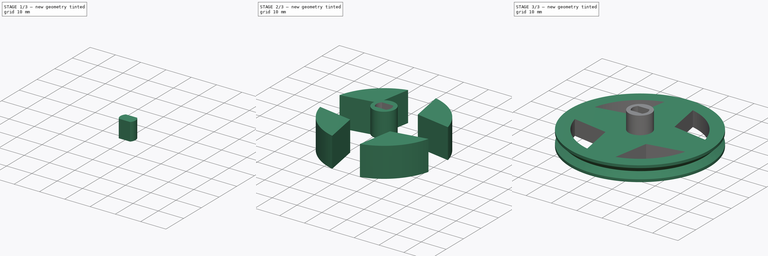
[diagram: build sequence overview — one tinted view per stage of 3, left to right]
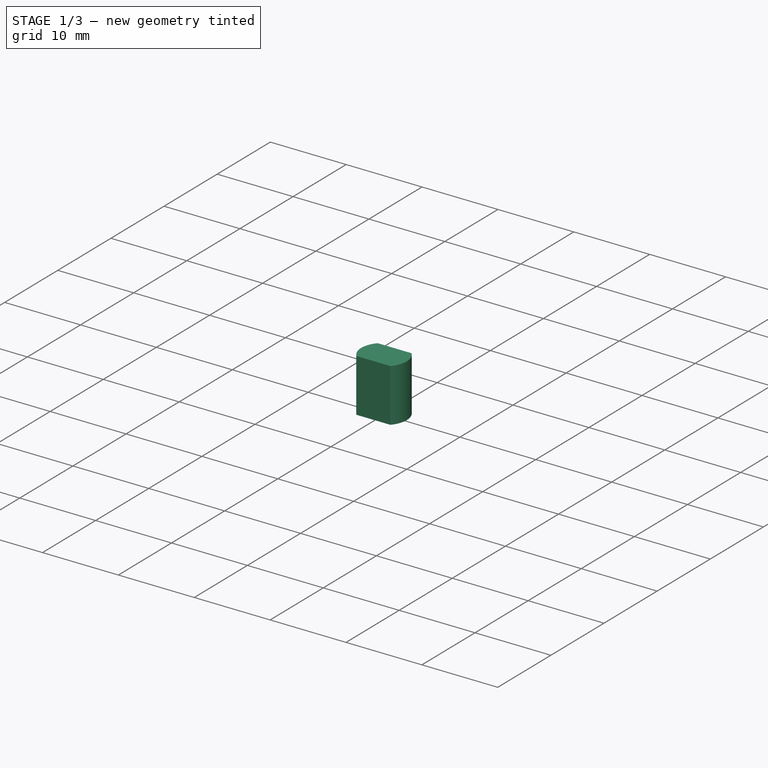
[diagram: stage 1 of 3 — iso view after this stage's code; geometry added in this stage tinted green]
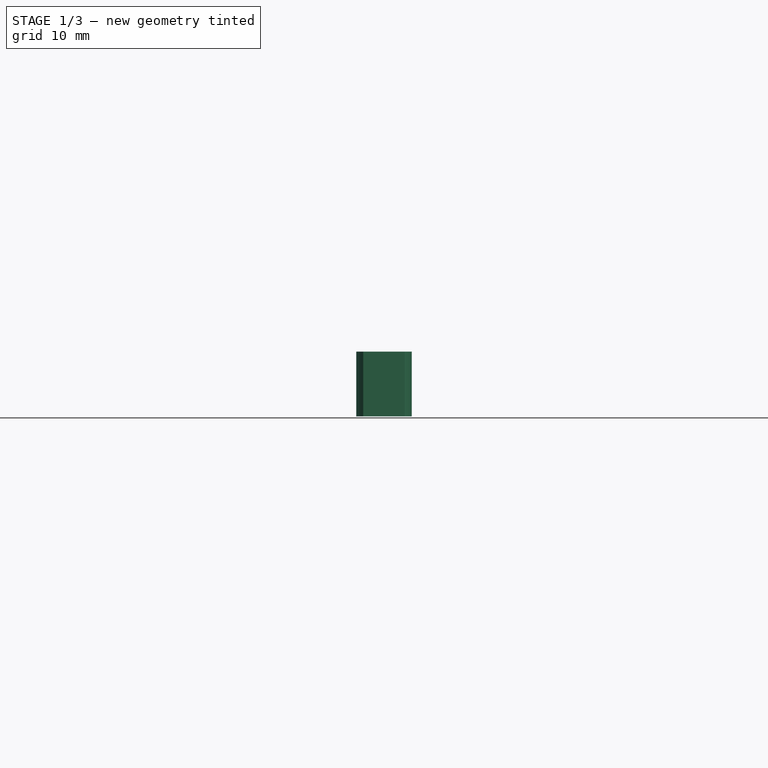
[diagram: stage 1 of 3 — front view after this stage's code; geometry added in this stage tinted green]
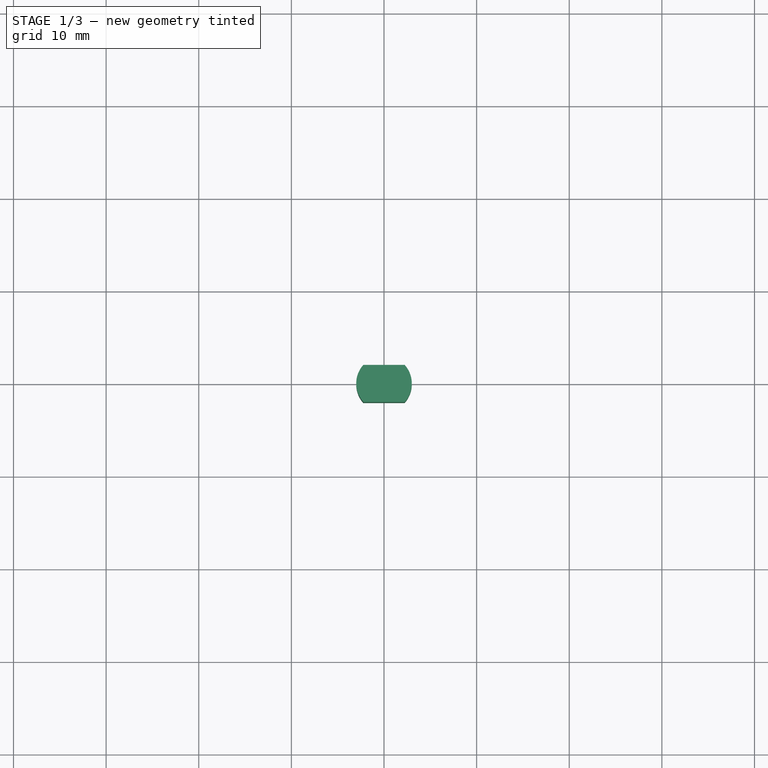
[diagram: stage 1 of 3 — top view after this stage's code; geometry added in this stage tinted green]
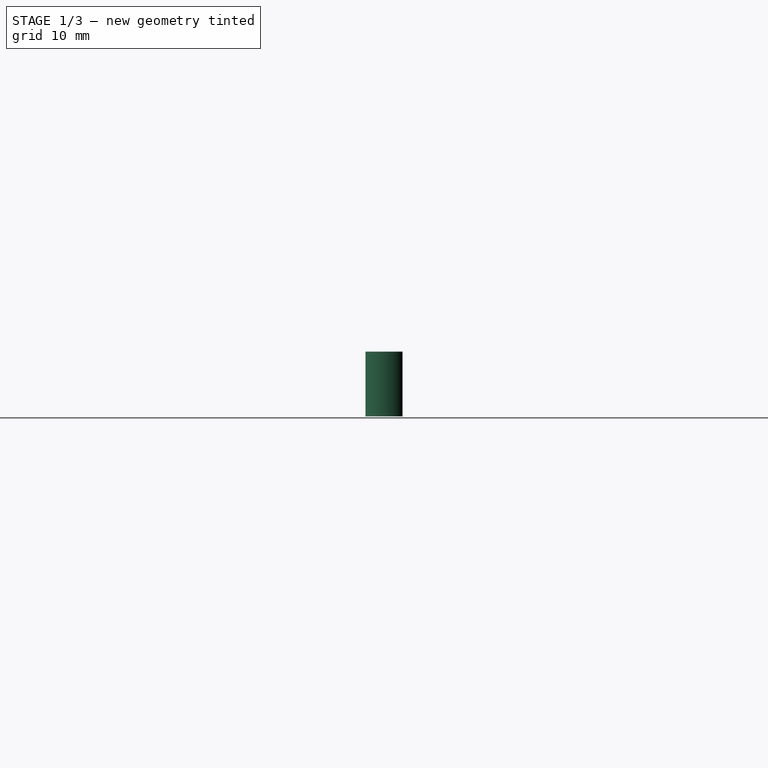
[diagram: stage 1 of 3 — right view after this stage's code; geometry added in this stage tinted green]
FCSTD DOCUMENT  (FreeCAD 0.20R29410 (Git))
Label: wheel 27.5mm r
License: All rights reserved
LicenseURL: http://en.wikipedia.org/wiki/All_rights_reserved
objects: Sketcher::SketchObject×3, Part::Extrusion×2, Part::Cut×2, PartDesign::Revolution×1, PartDesign::Body×1, Part::Cylinder×1
note: 11 computed .brp shape members not serialized (recipe doc carries the construction recipe); baked Part::Feature solids carry a one-line shape summary decoded from their .brp

FEATURE [Part::Cylinder] Cylinder
  Angle = 360
  AttacherType = Attacher::AttachEngine3D
  FirstAngle = 0
  Height = 10
  Radius = 4.5
  SecondAngle = 0
FEATURE [Sketcher::SketchObject] Sketch002
  FullyConstrained = true
  MapMode = 5
  Placement = pos=(0,0,10) rot=(0,0,1;0rad)
  Support = -> [Cylinder]
  sketch-geometry (4):
    g0: ArcOfCircle CenterX=0 CenterY=0 CenterZ=0 NormalX=0 NormalY=0 NormalZ=1 AngleXU=0 Radius=3 StartAngle=5.55346 EndAngle=7.01291
    g1: ArcOfCircle CenterX=0 CenterY=0 CenterZ=0 NormalX=0 NormalY=0 NormalZ=1 AngleXU=0 Radius=3 StartAngle=2.41186 EndAngle=3.87132
    g2: LineSegment StartX=-2.23607 StartY=2 StartZ=0 EndX=2.23607 EndY=2 EndZ=0
    g3: LineSegment StartX=2.23607 StartY=-2 StartZ=0 EndX=-2.23607 EndY=-2 EndZ=0
  constraints (12):
    c: Coincident(g0,g-1)
    c: Coincident(g1,g0)
    c: Equal(g0,g1)
    c: Coincident(g2,g1)
    c: Coincident(g2,g0)
    c: Horizontal(g2)
    c: Coincident(g3,g0)
    c: Coincident(g3,g1)
    c: Horizontal(g3)
    c: DistanceY(g1,g1) = 4
    c: Equal(g2,g3)
    c: Radius(g0) = 3
FEATURE [Part::Extrusion] Extrude001
  Base = -> Sketch002
  Dir = (0,0,1)
  DirMode = 2
  FaceMakerClass = Part::FaceMakerBullseye
  LengthFwd = 7
  LengthRev = 0
  Reversed = true
  Solid = true
  Symmetric = false
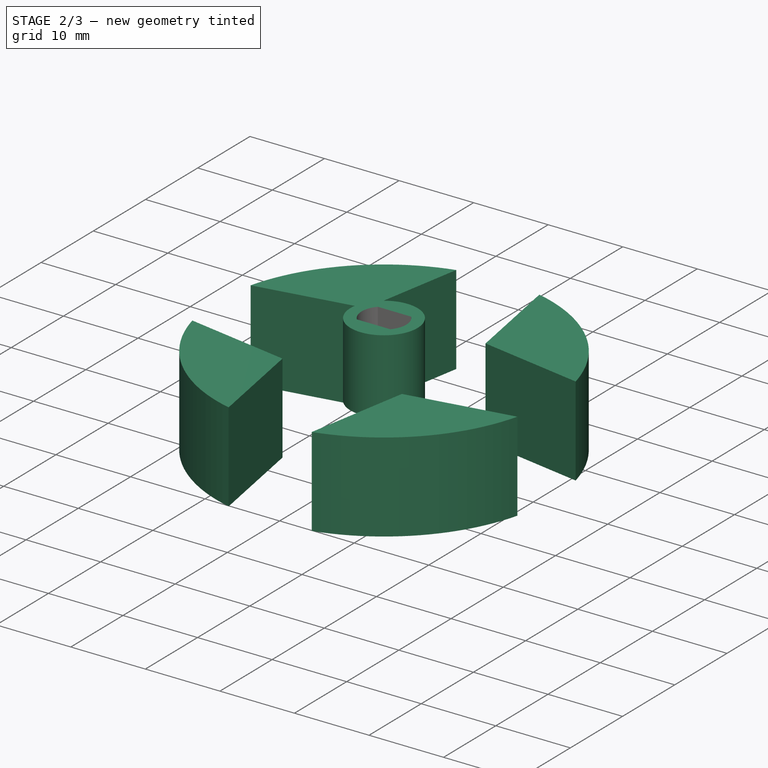
[diagram: stage 2 of 3 — iso view after this stage's code; geometry added in this stage tinted green]
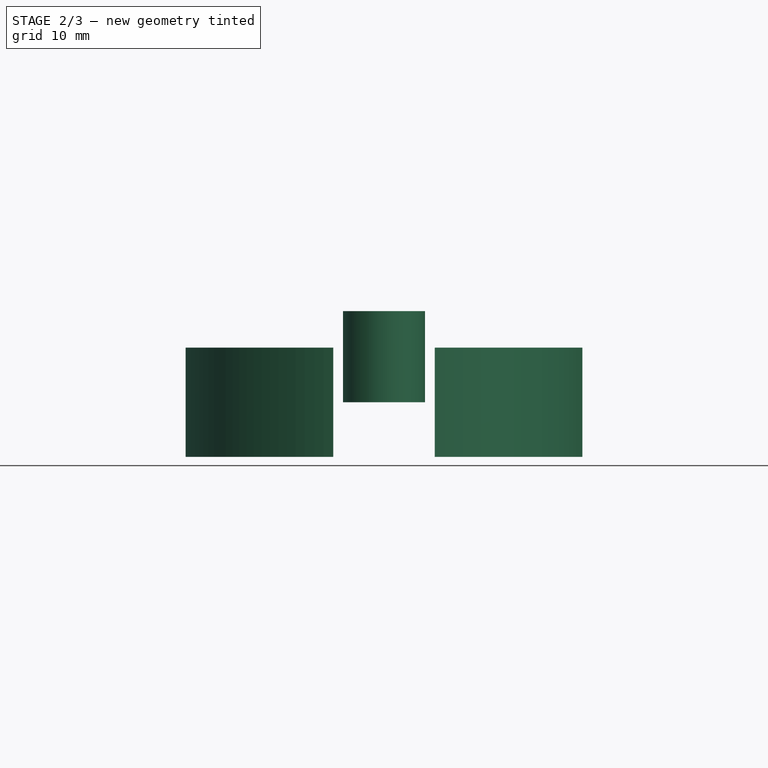
[diagram: stage 2 of 3 — front view after this stage's code; geometry added in this stage tinted green]
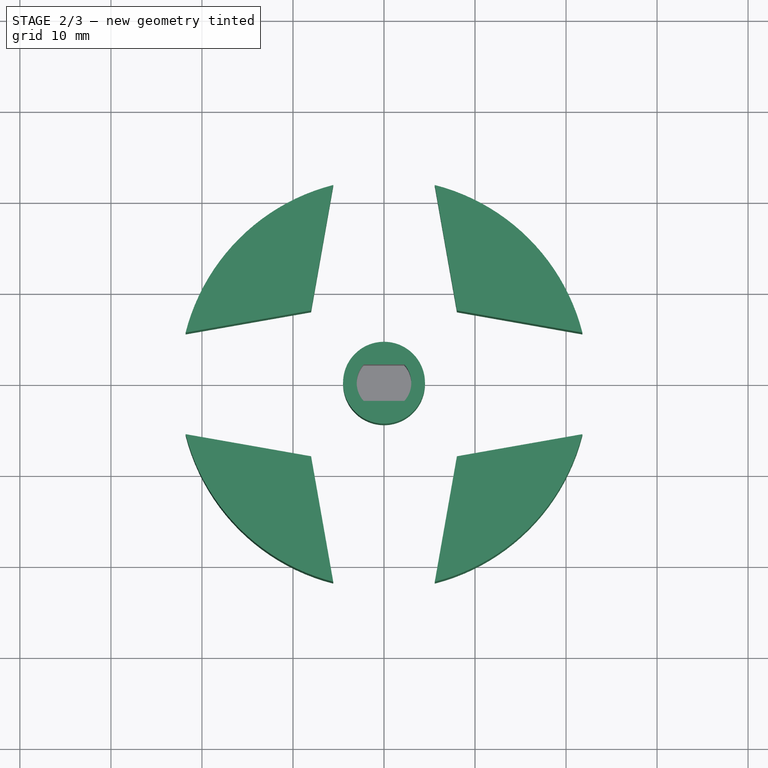
[diagram: stage 2 of 3 — top view after this stage's code; geometry added in this stage tinted green]
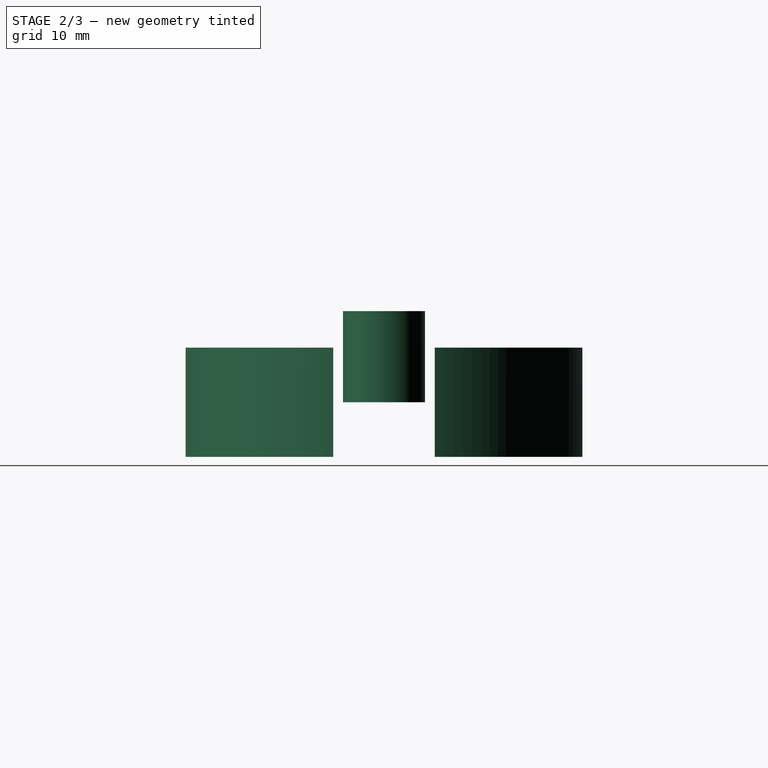
[diagram: stage 2 of 3 — right view after this stage's code; geometry added in this stage tinted green]
FEATURE [PartDesign::Body] Body
  Group = -> [Sketch,Revolution]
  Origin = -> Origin
  Tip = -> Revolution
FEATURE [Sketcher::SketchObject] Sketch001  label="Holes for wheel"
  FullyConstrained = true
  sketch-geometry (12):
    g0: ArcOfCircle CenterX=0 CenterY=0 CenterZ=0 NormalX=0 NormalY=0 NormalZ=1 AngleXU=0 Radius=22.5 StartAngle=1.82132 EndAngle=2.89098
    g1: LineSegment StartX=-21.7971 StartY=5.58 StartZ=0 EndX=-8.00968 EndY=8.01043 EndZ=0
    g2: LineSegment StartX=-5.57796 StartY=21.7976 StartZ=0 EndX=-8.00968 EndY=8.01043 EndZ=0
    g3: ArcOfCircle CenterX=0 CenterY=0 CenterZ=0 NormalX=0 NormalY=0 NormalZ=1 AngleXU=0 Radius=22.5 StartAngle=0.250615 EndAngle=1.32027
    g4: ArcOfCircle CenterX=0 CenterY=0 CenterZ=0 NormalX=0 NormalY=0 NormalZ=1 AngleXU=0 Radius=22.5 StartAngle=4.96291 EndAngle=6.03257
    g5: ArcOfCircle CenterX=0 CenterY=0 CenterZ=0 NormalX=0 NormalY=0 NormalZ=1 AngleXU=0 Radius=22.5 StartAngle=3.39221 EndAngle=4.46187
    g6: LineSegment StartX=-21.7971 StartY=-5.58 StartZ=0 EndX=-8.00968 EndY=-8.01043 EndZ=0
    g7: LineSegment StartX=-8.00968 StartY=-8.01043 StartZ=0 EndX=-5.57796 EndY=-21.7976 EndZ=0
    g8: LineSegment StartX=5.57796 StartY=-21.7976 StartZ=0 EndX=8.00968 EndY=-8.01043 EndZ=0
    g9: LineSegment StartX=8.00968 StartY=-8.01043 StartZ=0 EndX=21.7971 EndY=-5.58 EndZ=0
    g10: LineSegment StartX=21.7971 StartY=5.58 StartZ=0 EndX=8.00968 EndY=8.01043 EndZ=0
    g11: LineSegment StartX=8.00968 StartY=8.01043 StartZ=0 EndX=5.57796 EndY=21.7976 EndZ=0
  constraints (36):
    c: Coincident(g0,g-1)
    c: Radius(g0) = 22.5
    c: Coincident(g1,g0)
    c: Coincident(g2,g0)
    c: Coincident(g2,g1)
    c: Equal(g2,g1)
    c: Distance(g2) = 14
    c: Angle(g2,g1) = 1.91986
    c: DistanceY(g0,g0) = 5.58
    c: Coincident(g3,g0)
    c: Coincident(g4,g0)
    c: Coincident(g5,g0)
    c: Coincident(g6,g5)
    c: Coincident(g7,g6)
    c: Coincident(g7,g5)
    c: Coincident(g8,g4)
    c: Coincident(g9,g4)
    c: Coincident(g10,g3)
    c: Coincident(g11,g10)
    c: Coincident(g11,g3)
    c: Vertical(g1,g6)
    c: Vertical(g0,g5)
    c: Vertical(g0,g5)
    c: Radius(g5) = 22.5
    c: Radius(g4) = 22.5
    c: Radius(g3) = 22.5
    c: Distance(g11) = 14
    c: Distance(g9) = 14
    c: Distance(g7) = 14
    c: Horizontal(g0,g3)
    c: Horizontal(g1,g10)
    c: Horizontal(g0,g3)
    c: Coincident(g9,g8)
    c: Horizontal(g5,g4)
    c: Horizontal(g6,g8)
    c: Horizontal(g5,g4)
FEATURE [Part::Extrusion] Extrude  label="Extrude wheel holes 12mm"
  Base = -> Sketch001
  Dir = (0,0,1)
  DirMode = 2
  FaceMakerClass = Part::FaceMakerBullseye
  LengthFwd = 6
  LengthRev = 6
  Solid = true
  Symmetric = false
FEATURE [Part::Cut] Cut001  label="Cut for support"
  Base = -> Cylinder
  Refine = true
  Tool = -> Extrude001
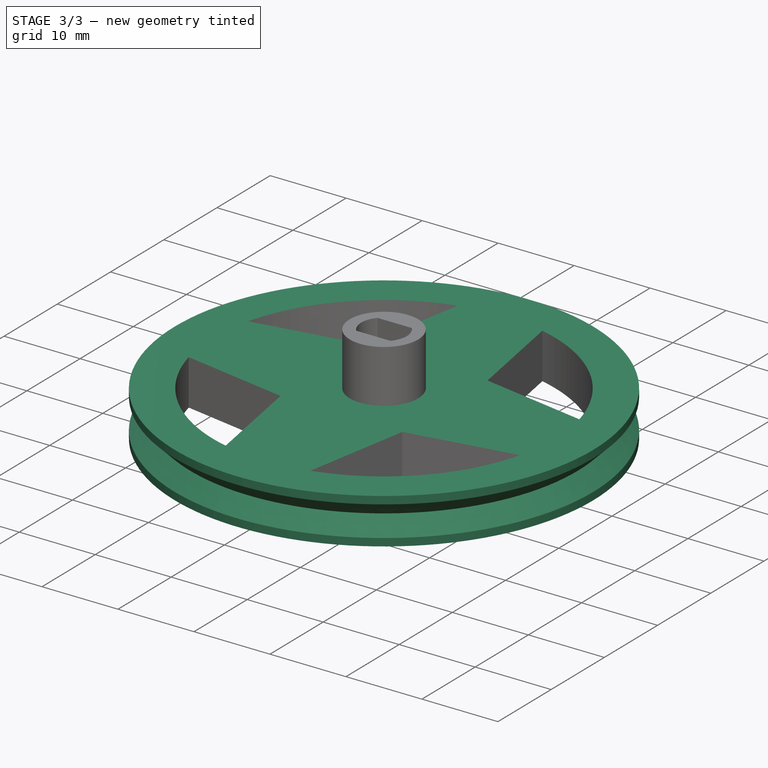
[diagram: stage 3 of 3 — iso view after this stage's code; geometry added in this stage tinted green]
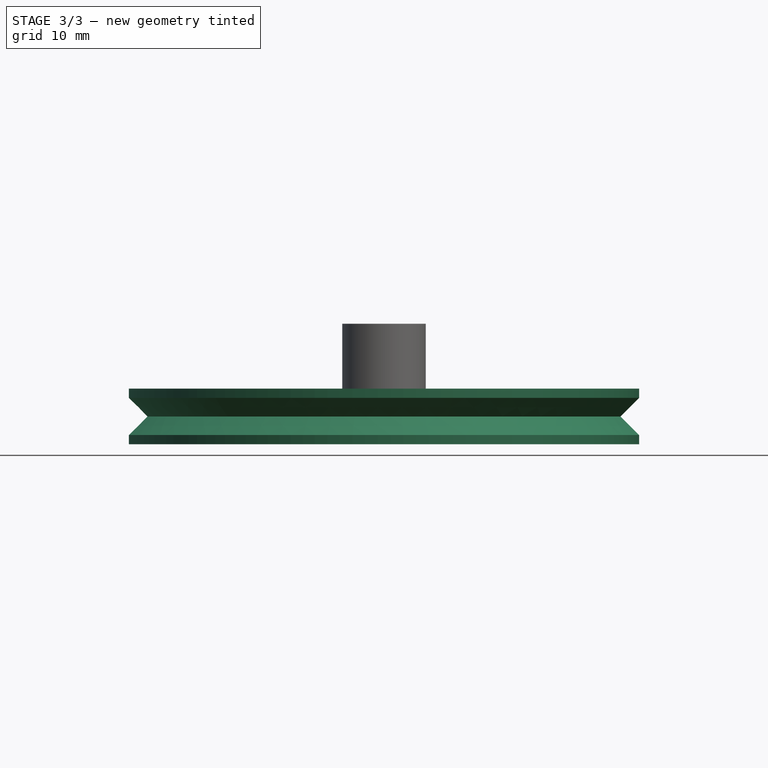
[diagram: stage 3 of 3 — front view after this stage's code; geometry added in this stage tinted green]
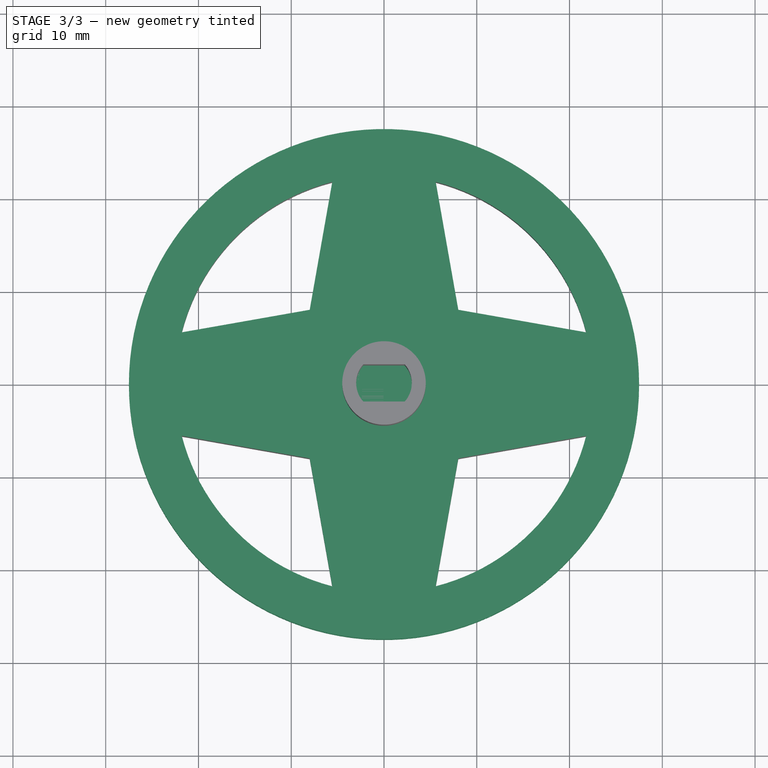
[diagram: stage 3 of 3 — top view after this stage's code; geometry added in this stage tinted green]
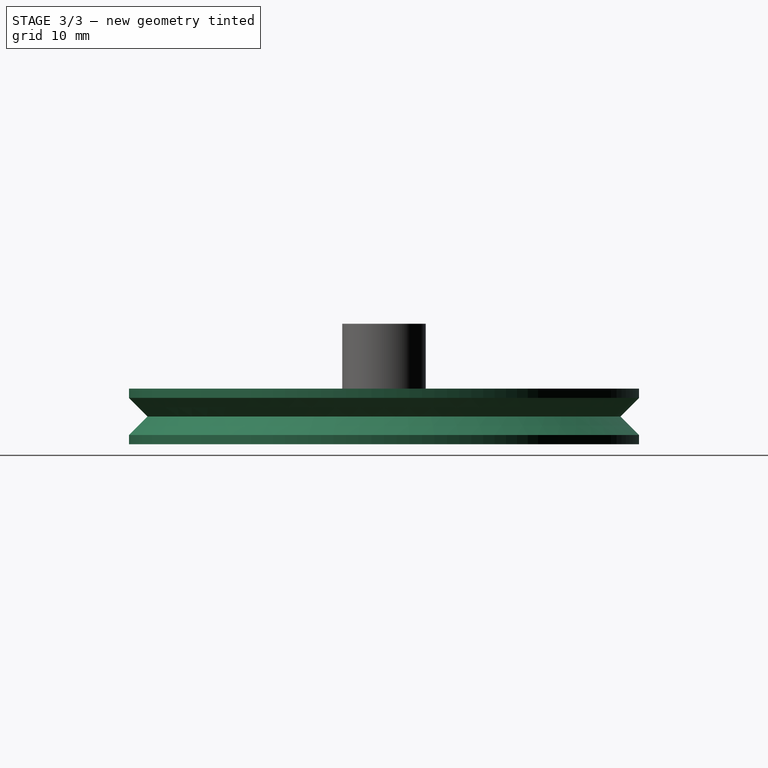
[diagram: stage 3 of 3 — right view after this stage's code; geometry added in this stage tinted green]
FEATURE [Sketcher::SketchObject] Sketch  label="Sketch wheel 27.5mm radio"
  FullyConstrained = true
  MapMode = 5
  Placement = pos=(0,0,0) rot=(1,0,0;1.5708rad)
  Support = -> [XZ_Plane]
  sketch-geometry (7):
    g0: LineSegment StartX=0 StartY=3 StartZ=0 EndX=27.5 EndY=3 EndZ=0
    g1: LineSegment StartX=27.5 StartY=-3 StartZ=0 EndX=0 EndY=-3 EndZ=0
    g2: LineSegment StartX=0 StartY=3 StartZ=0 EndX=0 EndY=-3 EndZ=0
    g3: LineSegment StartX=27.5 StartY=3 StartZ=0 EndX=27.5 EndY=2 EndZ=0
    g4: LineSegment StartX=27.5 StartY=2 StartZ=0 EndX=25.5 EndY=0 EndZ=0
    g5: LineSegment StartX=25.5 StartY=0 StartZ=0 EndX=27.5 EndY=-2 EndZ=0
    g6: LineSegment StartX=27.5 StartY=-2 StartZ=0 EndX=27.5 EndY=-3 EndZ=0
  constraints (21):
    c: PointOnObject(g0,g-2)
    c: Horizontal(g0)
    c: Horizontal(g1)
    c: Coincident(g2,g0)
    c: Coincident(g2,g1)
    c: Vertical(g2)
    c: DistanceY(g2,g2) = 6
    c: DistanceX(g0,g0) = 27.5
    c: Equal(g1,g0)
    c: Coincident(g3,g0)
    c: Coincident(g4,g3)
    c: PointOnObject(g4,g-1)
    c: Coincident(g6,g1)
    c: Equal(g3,g6)
    c: Equal(g5,g4)
    c: DistanceY(g3,g3) = 1
    c: Coincident(g5,g6)
    c: Vertical(g3)
    c: Vertical(g6)
    c: Coincident(g5,g4)
    c: DistanceX(g4,g4) = 2
FEATURE [PartDesign::Revolution] Revolution  label="Revolute wheel 360 grad"
  Angle = 360
  Axis = (0,2e-16,1)
  Base = (0,0,0)
  Placement = pos=(0,0,0) rot=(1,0,0;1.5708rad)
  Profile = -> Sketch
  ReferenceAxis = -> Sketch [V_Axis]
  Refine = true
  Reversed = true
FEATURE [Part::Cut] Cut  label="Cut of Wheel&Holes"
  Base = -> Revolution
  Refine = true
  Tool = -> Extrude
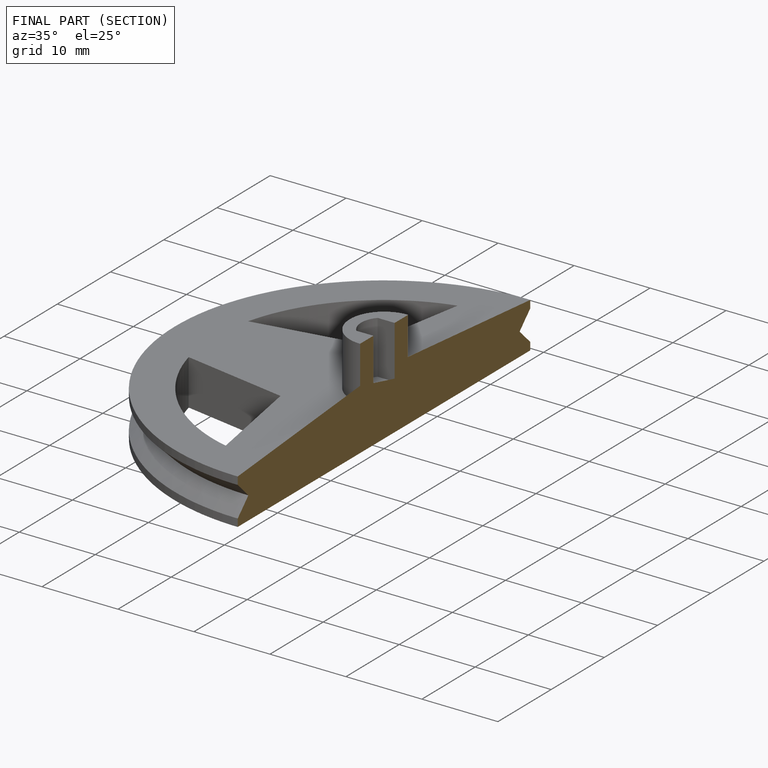
[diagram: finished part — half-section view (interior)]
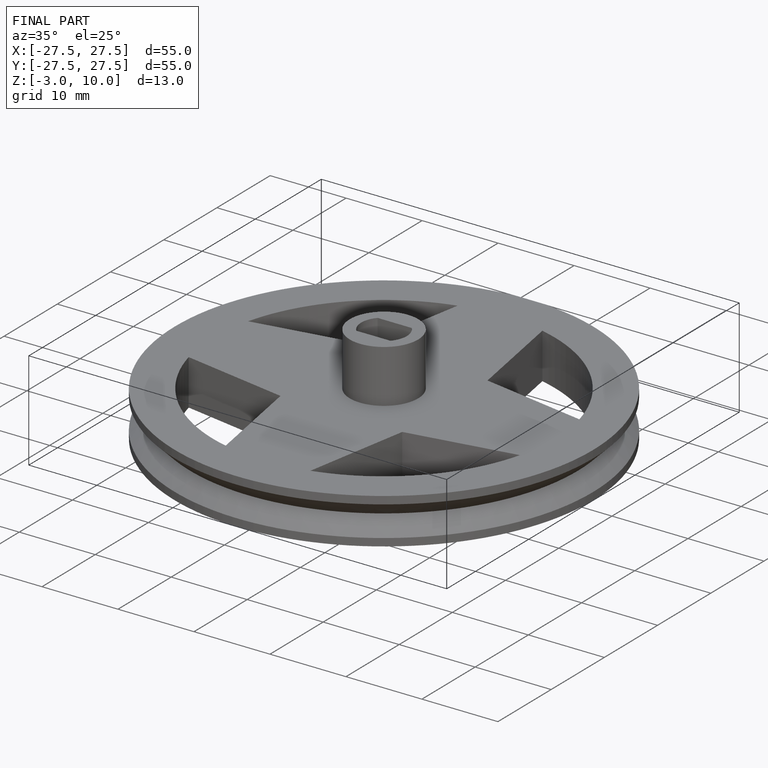
[diagram: finished part — iso view with bounding-box wireframe]
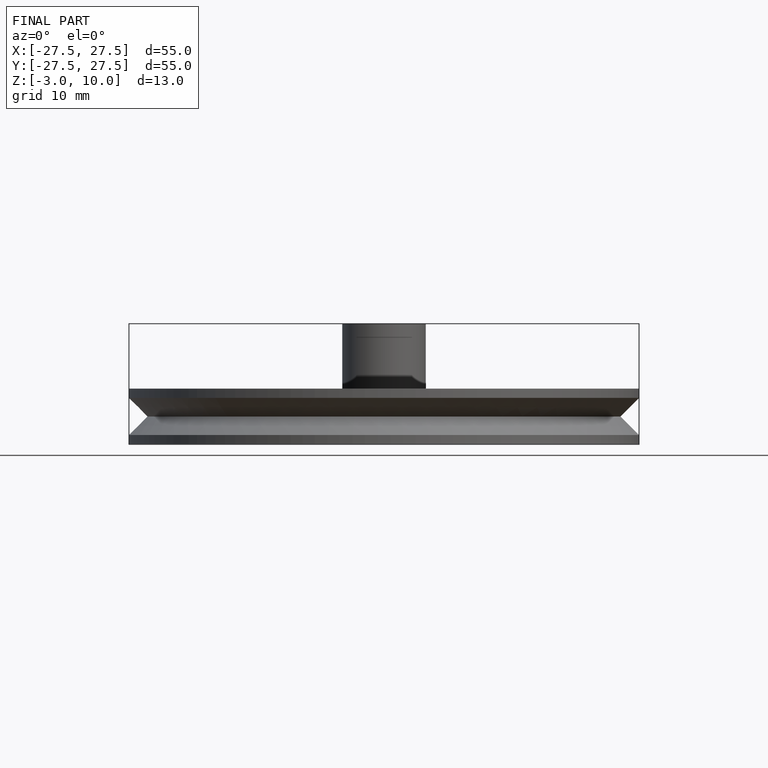
[diagram: finished part — front view with bounding-box wireframe]
